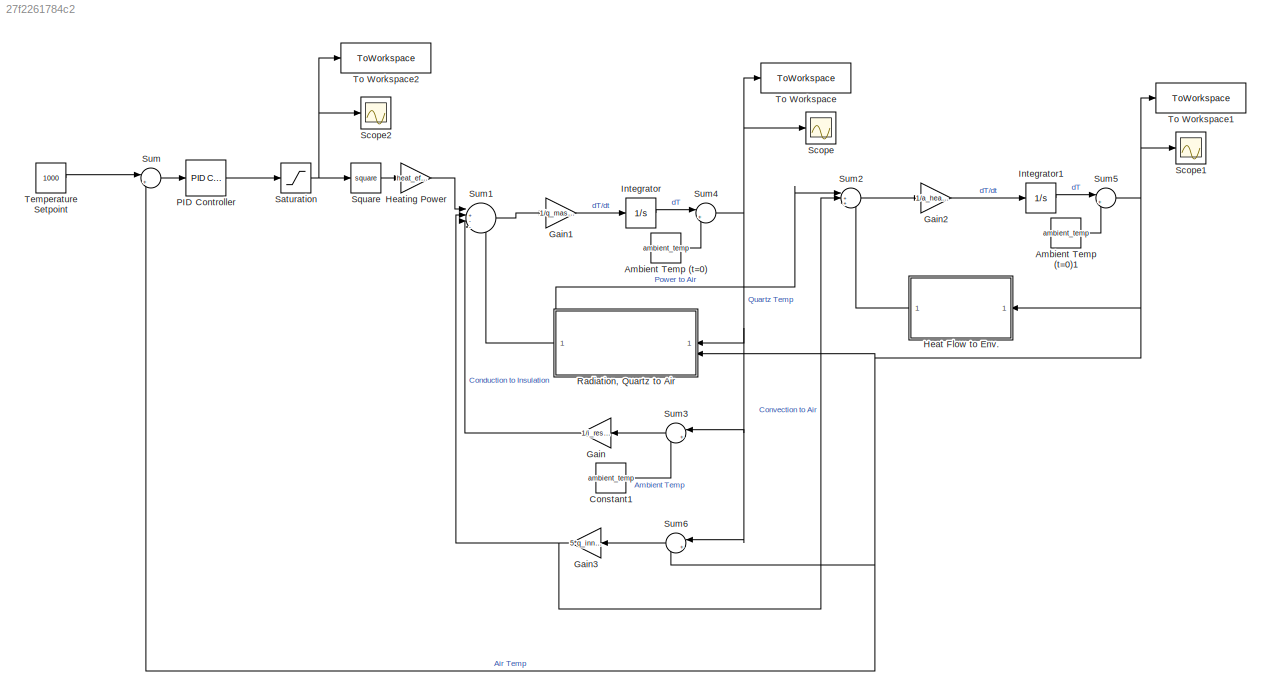
MODEL slx_27f2261784c2
KIND model
CONFIG AbsTol = auto
CONFIG EnableMultiTasking = off
CONFIG FixedStep = 0.001
CONFIG MaxStep = auto
CONFIG MinStep = auto
CONFIG RelTol = 1e-3
CONFIG SampleTimeConstraint = Unconstrained
CONFIG SolverName = VariableStepAuto
CONFIG StartTime = 0.0
CONFIG StopTime = 240
BLOCK [Constant] Ambient Temp (t=0)
  Value = ambient_temp
BLOCK [Constant] Ambient Temp (t=0)1
  Value = ambient_temp
BLOCK [Constant] Constant1
  Value = ambient_temp
BLOCK [Gain] Gain
  Gain = 1/i_resist_cond
  NameLocation = top
BLOCK [Gain] Gain1
  Gain = 1/q_mass/q_heat_cap
BLOCK [Gain] Gain2
  Gain = 1/a_heat_cap/a_inner_m
BLOCK [Gain] Gain3
  Gain = 5*q_inner_sa
  NameLocation = top
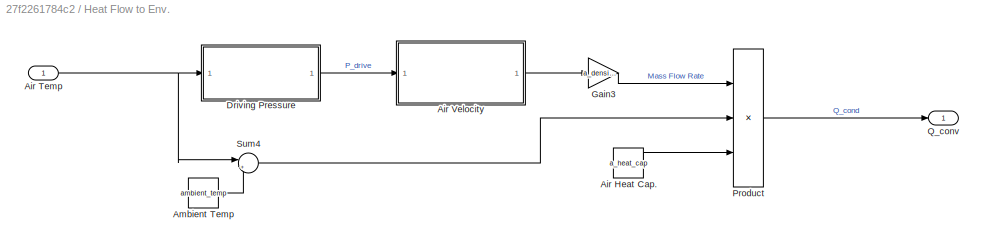
BLOCK [SubSystem] Heat Flow to Env.
  NameLocation = top
BLOCK [Constant] Heat Flow to Env./Air Heat Cap.
  Value = a_heat_cap
BLOCK [Inport] Heat Flow to Env./Air Temp
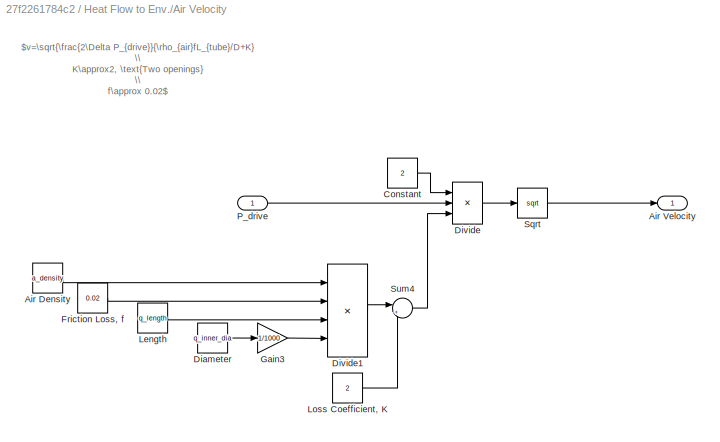
BLOCK [SubSystem] Heat Flow to Env./Air Velocity
BLOCK [Constant] Heat Flow to Env./Air Velocity/Air Density
  Value = a_density
BLOCK [Outport] Heat Flow to Env./Air Velocity/Air Velocity
BLOCK [Constant] Heat Flow to Env./Air Velocity/Constant
  Value = 2
BLOCK [Constant] Heat Flow to Env./Air Velocity/Diameter
  Value = q_inner_dia
BLOCK [Product] Heat Flow to Env./Air Velocity/Divide
  Inputs = **/
BLOCK [Product] Heat Flow to Env./Air Velocity/Divide1
  Inputs = ***/
BLOCK [Constant] Heat Flow to Env./Air Velocity/Friction Loss, f
  Value = 0.02
BLOCK [Gain] Heat Flow to Env./Air Velocity/Gain3
  Gain = 1/1000
BLOCK [Constant] Heat Flow to Env./Air Velocity/Length
  Value = q_length
BLOCK [Constant] Heat Flow to Env./Air Velocity/Loss Coefficient, K
  Value = 2
BLOCK [Inport] Heat Flow to Env./Air Velocity/P_drive
BLOCK [Sqrt] Heat Flow to Env./Air Velocity/Sqrt
BLOCK [Sum] Heat Flow to Env./Air Velocity/Sum4
  Inputs = |++
BLOCK [Constant] Heat Flow to Env./Ambient Temp
  Value = ambient_temp
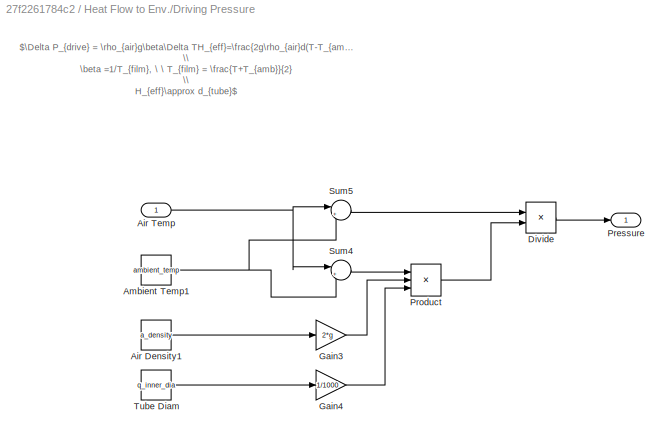
BLOCK [SubSystem] Heat Flow to Env./Driving Pressure
BLOCK [Constant] Heat Flow to Env./Driving Pressure/Air Density1
  Value = a_density
BLOCK [Inport] Heat Flow to Env./Driving Pressure/Air Temp
BLOCK [Constant] Heat Flow to Env./Driving Pressure/Ambient Temp1
  Value = ambient_temp
BLOCK [Product] Heat Flow to Env./Driving Pressure/Divide
  Inputs = /*
BLOCK [Gain] Heat Flow to Env./Driving Pressure/Gain3
  Gain = 2*g
BLOCK [Gain] Heat Flow to Env./Driving Pressure/Gain4
  Gain = 1/1000
BLOCK [Outport] Heat Flow to Env./Driving Pressure/Pressure
BLOCK [Product] Heat Flow to Env./Driving Pressure/Product
  Inputs = 3
BLOCK [Sum] Heat Flow to Env./Driving Pressure/Sum4
  Inputs = |+-
BLOCK [Sum] Heat Flow to Env./Driving Pressure/Sum5
  Inputs = |++
BLOCK [Constant] Heat Flow to Env./Driving Pressure/Tube Diam
  Value = q_inner_dia
BLOCK [Gain] Heat Flow to Env./Gain3
  Gain = a_density*pi/4*(q_inner_dia/1000)^2
BLOCK [Product] Heat Flow to Env./Product
  Inputs = 3
BLOCK [Outport] Heat Flow to Env./Q_conv
BLOCK [Sum] Heat Flow to Env./Sum4
  Inputs = |++
BLOCK [Gain] Heating Power
  Gain = heat_eff*w_tot_resist
BLOCK [Integrator] Integrator
BLOCK [Integrator] Integrator1
BLOCK [Reference] PID Controller  REF=slpidlib/PID Controller
  LibrarySourceBlock = simulink/Continuous/PID Controller
  SourceBlock = slpidlib/PID Controller
  SourceType = PID 1dof
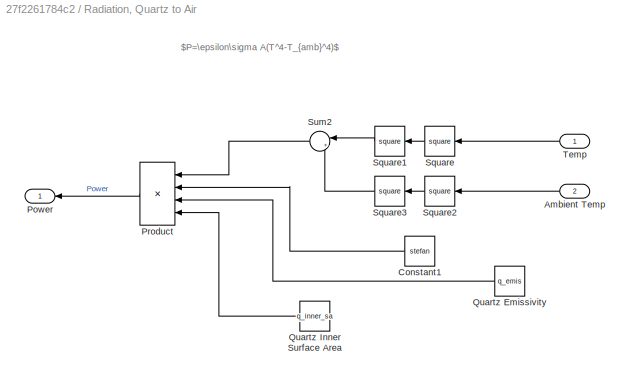
BLOCK [SubSystem] Radiation, Quartz to Air
  NameLocation = top
BLOCK [Inport] Radiation, Quartz to Air/Ambient Temp
  Port = 2
BLOCK [Constant] Radiation, Quartz to Air/Constant1
  NameLocation = top
  Value = stefan
BLOCK [Outport] Radiation, Quartz to Air/Power
  NameLocation = top
BLOCK [Product] Radiation, Quartz to Air/Product
  Inputs = 4
  NameLocation = top
BLOCK [Constant] Radiation, Quartz to Air/Quartz Emissivity
  NameLocation = top
  Value = q_emis
BLOCK [Constant] Radiation, Quartz to Air/Quartz Inner Surface Area
  NameLocation = top
  Value = q_inner_sa
BLOCK [Math] Radiation, Quartz to Air/Square
  NameLocation = top
  Operator = square
BLOCK [Math] Radiation, Quartz to Air/Square1
  NameLocation = top
  Operator = square
BLOCK [Math] Radiation, Quartz to Air/Square2
  NameLocation = top
  Operator = square
BLOCK [Math] Radiation, Quartz to Air/Square3
  NameLocation = top
  Operator = square
BLOCK [Sum] Radiation, Quartz to Air/Sum2
  Inputs = |+-
  NameLocation = top
BLOCK [Inport] Radiation, Quartz to Air/Temp
  NameLocation = top
BLOCK [Saturate] Saturation
  LowerLimit = 0
  UpperLimit = current
BLOCK [Scope] Scope
  ActiveDisplayYMaximum = 1
  ActiveDisplayYMinimum = -1
  Floating = off
  GraphicalSettings = {"Style":{"BackgroundColor":[0.12941176470588237,0.12941176470588237,0.12941176470588237],"AxesColor":[0.07058823529411765,0.07058823529411765,0.07058823529411765],"LabelsColor":[0.8509803921568627,0.8509803921568627,0.8509803921568627],"PreserveColors":false,"Visible":[true],"LineStyle":["-"],"LineWidth":[1.5],"BarWidth":[0.9],"LineColor":["auto"],"LineFaceAlpha":[1],"LineEdgeAlpha":[1],"Marker":...<+1904ch>
  MultipleDisplayCache = [{"MaxYLimMag":1,"MaxYLimReal":1,"MinYLimMag":0,"MinYLimReal":-1,"PlotAsMagnitudePhase":false,"ShowGrid":true,"ShowLegend":false,"Title":"%<SignalLabel>","YLabel":""}]
  NumInputPorts = 1
  ScopeFrameLocation = window
  WasSavedAsWebScope = on
  WindowPosition = [488.000000,222.000000,560.000000,420.000000,]
BLOCK [Scope] Scope1
  ActiveDisplayYMaximum = 1069.7653963867479
  ActiveDisplayYMinimum = 161.36503198729474
  DataLoggingVariableName = ScopeData1
  Floating = off
  GraphicalSettings = {"Style":{"BackgroundColor":[0.12941176470588237,0.12941176470588237,0.12941176470588237],"AxesColor":[0.07058823529411765,0.07058823529411765,0.07058823529411765],"LabelsColor":[0.8509803921568627,0.8509803921568627,0.8509803921568627],"PreserveColors":false,"Visible":[true],"LineStyle":["-"],"LineWidth":[1.5],"BarWidth":[0.9],"LineColor":["auto"],"LineFaceAlpha":[1],"LineEdgeAlpha":[1],"Marker":...<+1999ch>
  MultipleDisplayCache = [{"MaxYLimMag":1120.6090314464823,"MaxYLimReal":1069.7653963867479,"MinYLimMag":0,"MinYLimReal":161.36503198729474,"PlotAsMagnitudePhase":false,"ShowGrid":true,"ShowLegend":false,"Title":"%<SignalLabel>","YLabel":""}]
  NumInputPorts = 1
  ScopeFrameLocation = window
  WasSavedAsWebScope = on
  WindowPosition = [488.000000,222.000000,560.000000,420.000000,]
BLOCK [Scope] Scope2
  ActiveDisplayYMaximum = 1
  ActiveDisplayYMinimum = -1
  DataLoggingVariableName = ScopeData2
  Floating = off
  GraphicalSettings = {"Style":{"BackgroundColor":[0.12941176470588237,0.12941176470588237,0.12941176470588237],"AxesColor":[0.07058823529411765,0.07058823529411765,0.07058823529411765],"LabelsColor":[0.8509803921568627,0.8509803921568627,0.8509803921568627],"PreserveColors":false,"Visible":[true],"LineStyle":["-"],"LineWidth":[1.5],"BarWidth":[0.9],"LineColor":["auto"],"LineFaceAlpha":[1],"LineEdgeAlpha":[1],"Marker":...<+1899ch>
  MultipleDisplayCache = [{"MaxYLimMag":1,"MaxYLimReal":1,"MinYLimMag":0,"MinYLimReal":-1,"PlotAsMagnitudePhase":false,"ShowGrid":true,"ShowLegend":false,"Title":"%<SignalLabel>","YLabel":""}]
  NumInputPorts = 1
  ScopeFrameLocation = window
  WasSavedAsWebScope = on
  WindowPosition = [488.000000,222.000000,560.000000,420.000000,]
BLOCK [Math] Square
  Operator = square
BLOCK [Sum] Sum
  Inputs = |+-
BLOCK [Sum] Sum1
  Inputs = |+---
BLOCK [Sum] Sum2
  Inputs = |++-
BLOCK [Sum] Sum3
  Inputs = |+-
  NameLocation = top
BLOCK [Sum] Sum4
  Inputs = |++
BLOCK [Sum] Sum5
  Inputs = |++
BLOCK [Sum] Sum6
  Inputs = |+-
  NameLocation = top
BLOCK [Constant] Temperature Setpoint
  Value = 1000
BLOCK [ToWorkspace] To Workspace
  FixptAsFi = on
  MaxDataPoints = inf
  SampleTime = -1
  SaveFormat = Timeseries
  VariableName = q_t
BLOCK [ToWorkspace] To Workspace1
  FixptAsFi = on
  MaxDataPoints = inf
  SampleTime = -1
  SaveFormat = Timeseries
  VariableName = a_t
BLOCK [ToWorkspace] To Workspace2
  FixptAsFi = on
  MaxDataPoints = inf
  SampleTime = -1
  SaveFormat = Timeseries
  VariableName = current
ANNOTATION Heat Flow to Env./Air Velocity: $v=\sqrt{\frac{2\Delta P_{drive}}{\rho_{air}fL_{tube}/D+K} \\ K\approx2, \text{Two openings} \\ f\approx 0.02$
ANNOTATION Heat Flow to Env./Driving Pressure: $\Delta P_{drive} = \rho_{air}g\beta\Delta TH_{eff}=\frac{2g\rho_{air}d(T-T_{amb})}{T+T_{amb}} \\ \beta =1/T_{film}, \ \ T_{film} = \frac{T+T_{amb}}{2} \\ H_{eff}\approx d_{tube}$
ANNOTATION Radiation, Quartz to Air: $P=\epsilon\sigma A(T^4-T_{amb}^4)$
LINE Ambient Temp (t=0)1:1 -> Sum5:2
LINE Ambient Temp (t=0):1 -> Sum4:2
LINE Constant1:1 -> Sum3:2
LINE Gain1:1 -> Integrator:1
LINE Gain2:1 -> Integrator1:1
NET Gain3:1 -> Sum1:2, Sum2:2
LINE Gain:1 -> Sum1:3
LINE Heat Flow to Env./Air Heat Cap.:1 -> Heat Flow to Env./Product:3
NET Heat Flow to Env./Air Temp:1 -> Heat Flow to Env./Driving Pressure:1, Heat Flow to Env./Sum4:1
LINE Heat Flow to Env./Air Velocity/Air Density:1 -> Heat Flow to Env./Air Velocity/Divide1:1
LINE Heat Flow to Env./Air Velocity/Constant:1 -> Heat Flow to Env./Air Velocity/Divide:1
LINE Heat Flow to Env./Air Velocity/Diameter:1 -> Heat Flow to Env./Air Velocity/Gain3:1
LINE Heat Flow to Env./Air Velocity/Divide1:1 -> Heat Flow to Env./Air Velocity/Sum4:1
LINE Heat Flow to Env./Air Velocity/Divide:1 -> Heat Flow to Env./Air Velocity/Sqrt:1
LINE Heat Flow to Env./Air Velocity/Friction Loss, f:1 -> Heat Flow to Env./Air Velocity/Divide1:2
LINE Heat Flow to Env./Air Velocity/Gain3:1 -> Heat Flow to Env./Air Velocity/Divide1:4
LINE Heat Flow to Env./Air Velocity/Length:1 -> Heat Flow to Env./Air Velocity/Divide1:3
LINE Heat Flow to Env./Air Velocity/Loss Coefficient, K:1 -> Heat Flow to Env./Air Velocity/Sum4:2
LINE Heat Flow to Env./Air Velocity/P_drive:1 -> Heat Flow to Env./Air Velocity/Divide:2
LINE Heat Flow to Env./Air Velocity/Sqrt:1 -> Heat Flow to Env./Air Velocity/Air Velocity:1
LINE Heat Flow to Env./Air Velocity/Sum4:1 -> Heat Flow to Env./Air Velocity/Divide:3
LINE Heat Flow to Env./Air Velocity:1 -> Heat Flow to Env./Gain3:1
LINE Heat Flow to Env./Ambient Temp:1 -> Heat Flow to Env./Sum4:2
LINE Heat Flow to Env./Driving Pressure/Air Density1:1 -> Heat Flow to Env./Driving Pressure/Gain3:1
NET Heat Flow to Env./Driving Pressure/Air Temp:1 -> Heat Flow to Env./Driving Pressure/Sum4:1, Heat Flow to Env./Driving Pressure/Sum5:1
NET Heat Flow to Env./Driving Pressure/Ambient Temp1:1 -> Heat Flow to Env./Driving Pressure/Sum4:2, Heat Flow to Env./Driving Pressure/Sum5:2
LINE Heat Flow to Env./Driving Pressure/Divide:1 -> Heat Flow to Env./Driving Pressure/Pressure:1
LINE Heat Flow to Env./Driving Pressure/Gain3:1 -> Heat Flow to Env./Driving Pressure/Product:2
LINE Heat Flow to Env./Driving Pressure/Gain4:1 -> Heat Flow to Env./Driving Pressure/Product:3
LINE Heat Flow to Env./Driving Pressure/Product:1 -> Heat Flow to Env./Driving Pressure/Divide:2
LINE Heat Flow to Env./Driving Pressure/Sum4:1 -> Heat Flow to Env./Driving Pressure/Product:1
LINE Heat Flow to Env./Driving Pressure/Sum5:1 -> Heat Flow to Env./Driving Pressure/Divide:1
LINE Heat Flow to Env./Driving Pressure/Tube Diam:1 -> Heat Flow to Env./Driving Pressure/Gain4:1
LINE Heat Flow to Env./Driving Pressure:1 -> Heat Flow to Env./Air Velocity:1
LINE Heat Flow to Env./Gain3:1 -> Heat Flow to Env./Product:1
LINE Heat Flow to Env./Product:1 -> Heat Flow to Env./Q_conv:1
LINE Heat Flow to Env./Sum4:1 -> Heat Flow to Env./Product:2
LINE Heat Flow to Env.:1 -> Sum2:3
LINE Heating Power:1 -> Sum1:1
LINE Integrator1:1 -> Sum5:1
LINE Integrator:1 -> Sum4:1
LINE PID Controller:1 -> Saturation:1
LINE Radiation, Quartz to Air/Ambient Temp:1 -> Radiation, Quartz to Air/Square2:1
LINE Radiation, Quartz to Air/Constant1:1 -> Radiation, Quartz to Air/Product:2
LINE Radiation, Quartz to Air/Product:1 -> Radiation, Quartz to Air/Power:1
LINE Radiation, Quartz to Air/Quartz Emissivity:1 -> Radiation, Quartz to Air/Product:3
LINE Radiation, Quartz to Air/Quartz Inner Surface Area:1 -> Radiation, Quartz to Air/Product:4
LINE Radiation, Quartz to Air/Square1:1 -> Radiation, Quartz to Air/Sum2:1
LINE Radiation, Quartz to Air/Square2:1 -> Radiation, Quartz to Air/Square3:1
LINE Radiation, Quartz to Air/Square3:1 -> Radiation, Quartz to Air/Sum2:2
LINE Radiation, Quartz to Air/Square:1 -> Radiation, Quartz to Air/Square1:1
LINE Radiation, Quartz to Air/Sum2:1 -> Radiation, Quartz to Air/Product:1
LINE Radiation, Quartz to Air/Temp:1 -> Radiation, Quartz to Air/Square:1
NET Radiation, Quartz to Air:1 -> Sum1:4, Sum2:1
NET Saturation:1 -> Scope2:1, Square:1, To Workspace2:1
LINE Square:1 -> Heating Power:1
LINE Sum1:1 -> Gain1:1
LINE Sum2:1 -> Gain2:1
LINE Sum3:1 -> Gain:1
NET Sum4:1 -> Radiation, Quartz to Air:1, Scope:1, Sum3:1, Sum6:1, To Workspace:1
NET Sum5:1 -> Heat Flow to Env.:1, Radiation, Quartz to Air:2, Scope1:1, Sum6:2, Sum:2, To Workspace1:1
LINE Sum6:1 -> Gain3:1
LINE Sum:1 -> PID Controller:1
LINE Temperature Setpoint:1 -> Sum:1
note: NET lines group one-source signal fan-out (src -> all destinations, sorted); 1:1 wires keep LINE
